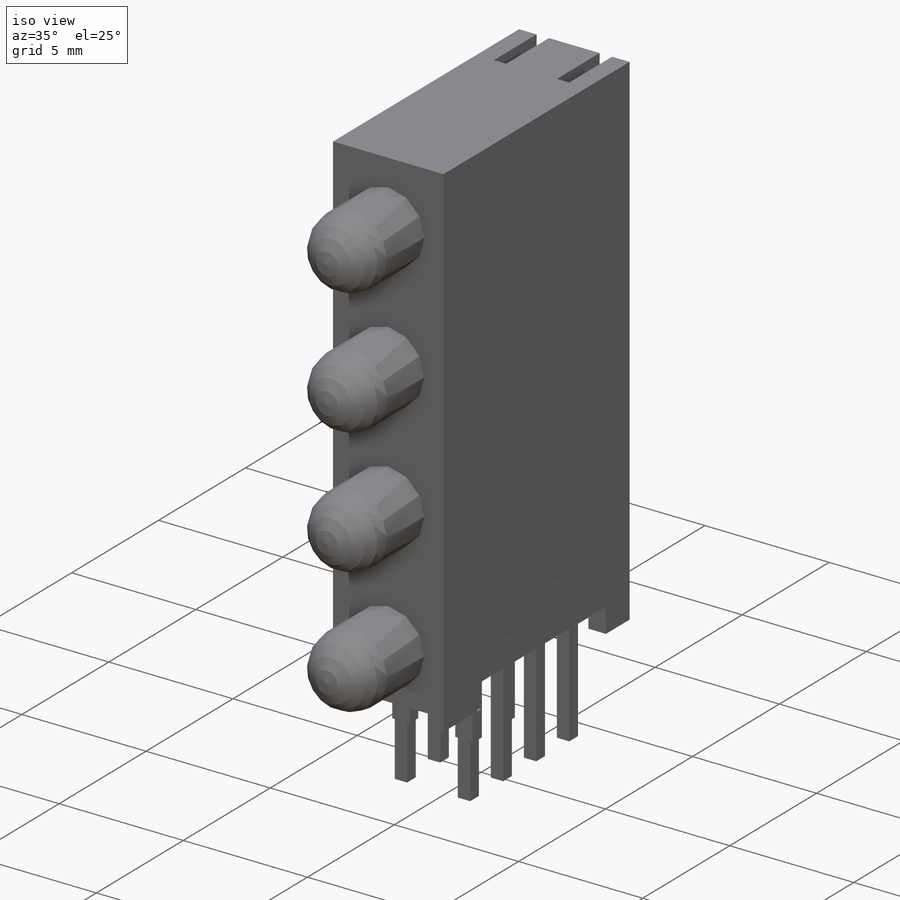
[diagram: iso view]
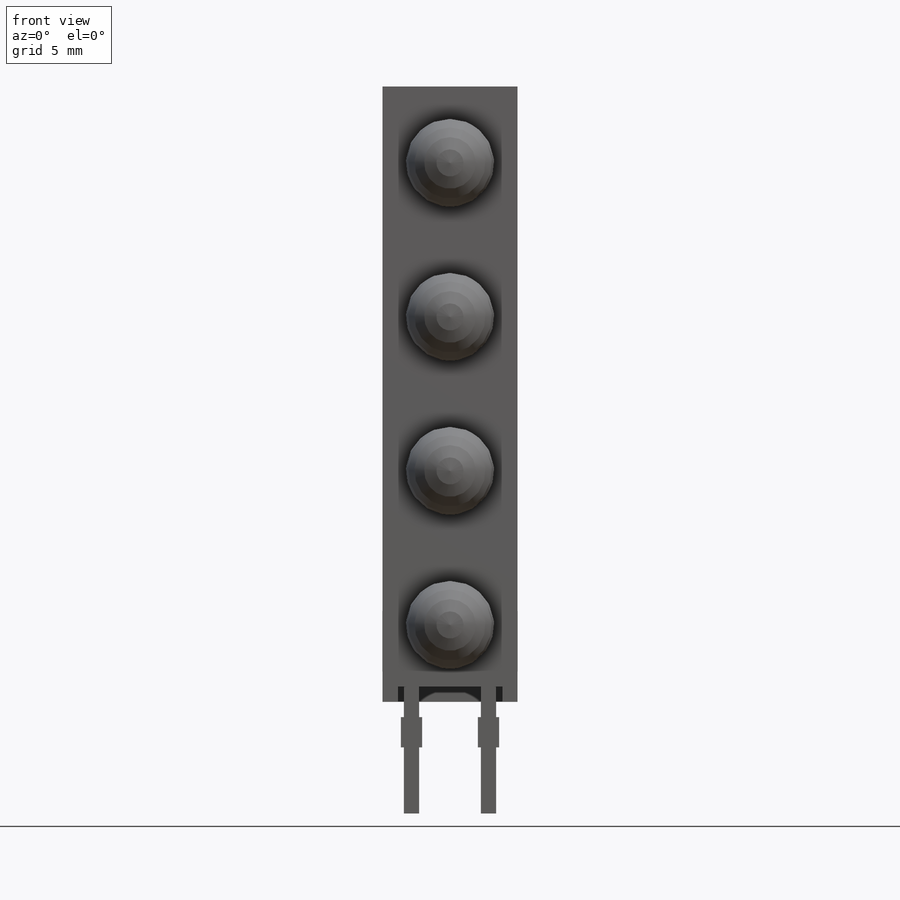
[diagram: front view]
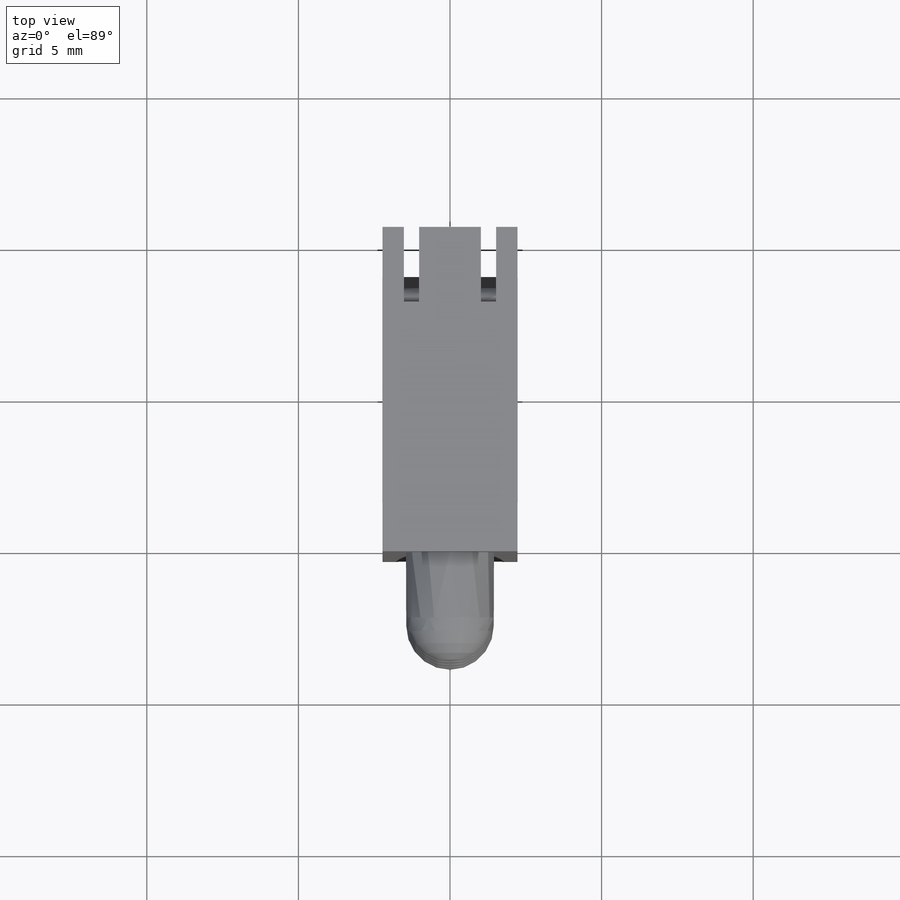
[diagram: top view]
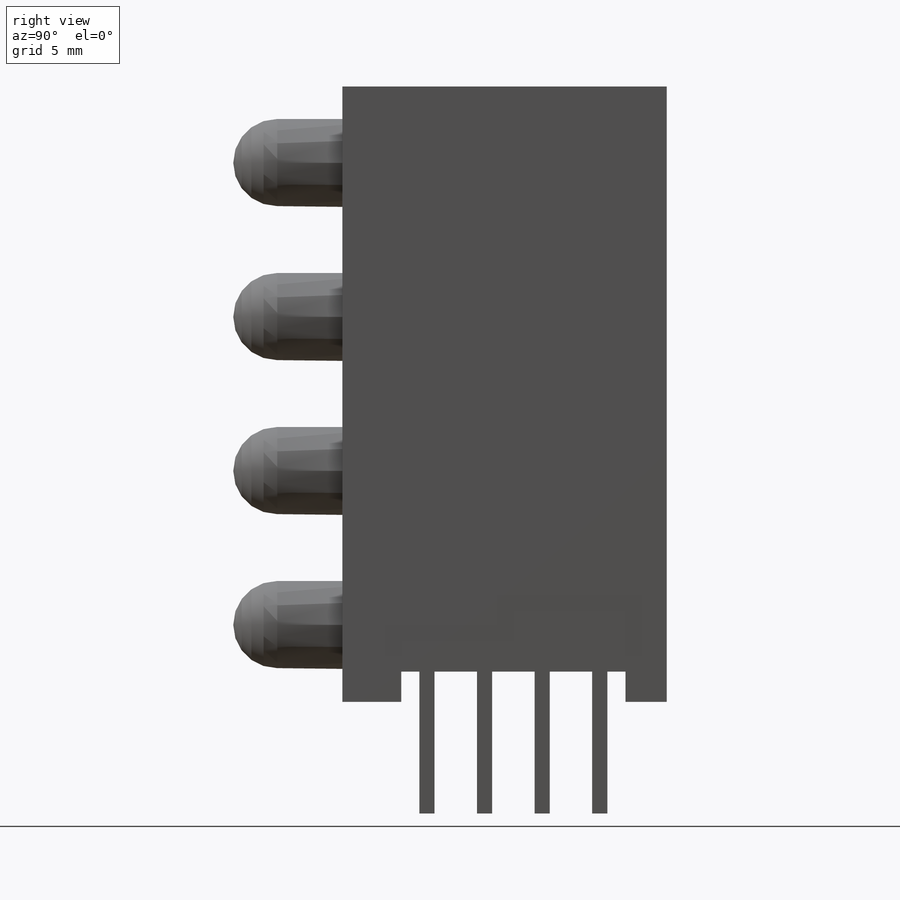
[diagram: right view]
SOLIDWORKS PART (.sldprt)
format: sldprt  version: not decoded by parser v0  size: 970,240 bytes
history: native  units: mm
features: sketch x15, extrude x7, revolve x4, cut_extrude x4, material x1, fillet x1 (+12 scaffold rows collapsed)
feature tree (44):
  scaffold x12  (default folders/planes/origin — collapsed)
  material  "Material <not specified>"
  sketch  "Sketch1"  dims[D3=2.9mm D1=20.3mm D2=10.7mm D4=3.6mm D5=2.54mm D6=5.08mm D7=5.08mm D8=5.08mm D9=0.5mm D10=1.94mm D11=3.7mm D12=7.4mm D13=1.0mm D14=2.0mm]
  extrude  "Extrude1"  Depth=4.45mm
  revolve  "Revolve1"  [1 undecoded]
  sketch  "Sketch1<3>"  dims[D1=360.0deg]
  revolve  "Revolve2"  [1 undecoded]
  sketch  "Sketch1<4>"  dims[D1=360.0deg]
  revolve  "Revolve4"  [1 undecoded]
  sketch  "Sketch1<6>"  dims[D1=360.0deg]
  revolve  "Revolve5"  [1 undecoded]
  sketch  "Sketch1<7>"  dims[D1=360.0deg]
  cut_extrude  "Cut-Extrude1"  [1 undecoded]
  sketch  "Sketch1<8>"  dims[D1=3.45mm]
  extrude  "Extrude2"  [1 undecoded]
  sketch  "Sketch1<9>"  dims[D1=4.46mm]
  sketch  "Sketch2"  dims[D1=2.79mm D2=0.5mm D3=0.5mm D4=1.9mm D5=1.9mm D6=1.9mm D7=2.54mm D8=0.5mm D9=1.36mm]
  sketch  "Sketch3"
  cut_extrude  "Cut-Extrude2"  [1 undecoded]
  cut_extrude  "Cut-Extrude4"  [1 undecoded]
  extrude  "Extrude3"  [1 undecoded]
  sketch  "Sketch2<3>"
  extrude  "Extrude4"  [1 undecoded]
  sketch  "Sketch2<4>"
  extrude  "Extrude5"  [1 undecoded]
  sketch  "Sketch2<5>"  dims[D1=3.68mm]
  sketch  "Sketch4"  dims[D1=1.0mm D2=0.7mm D3=0.5mm]
  extrude  "Extrude6"  [1 undecoded]
  fillet  "Fillet1"  Radius=0.5mm
  extrude  "Extrude7"  [1 undecoded]
  sketch  "Sketch3<4>"
  sketch  "Sketch5"
  cut_extrude  "Cut-Extrude5"  Depth=0.01mm
decode coverage: 13 of 31 modeling features carry decoded parameters
note: 13 parameter values undecoded
summary: no parameter record found for 13 features
note: suppression state not decoded; provenance and decode notes live in map.json
